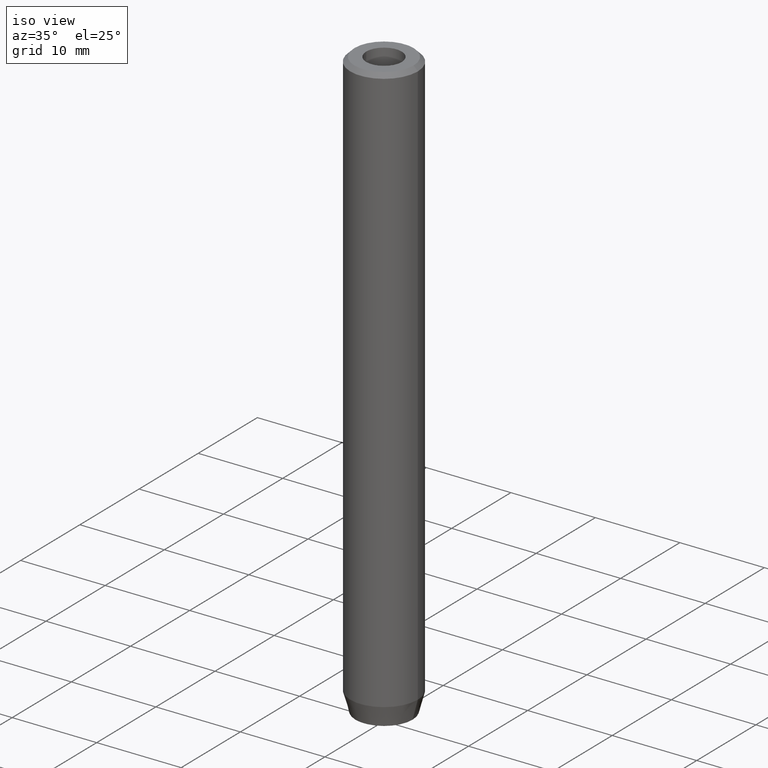
[diagram: clean part render]
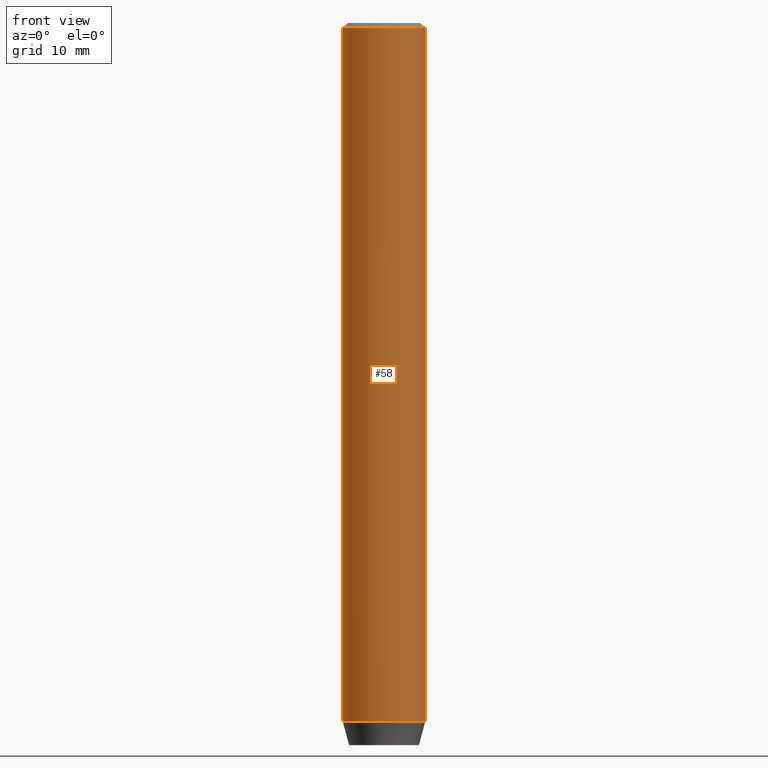
[diagram: tour spotlight — one face highlighted and labeled with its STEP entity id]
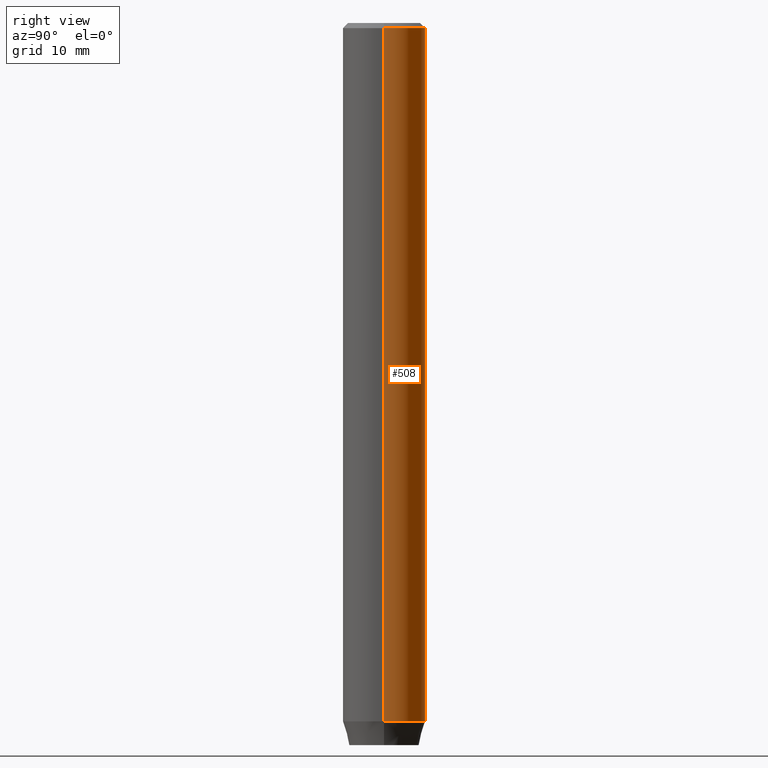
[diagram: tour spotlight — one face highlighted and labeled with its STEP entity id]
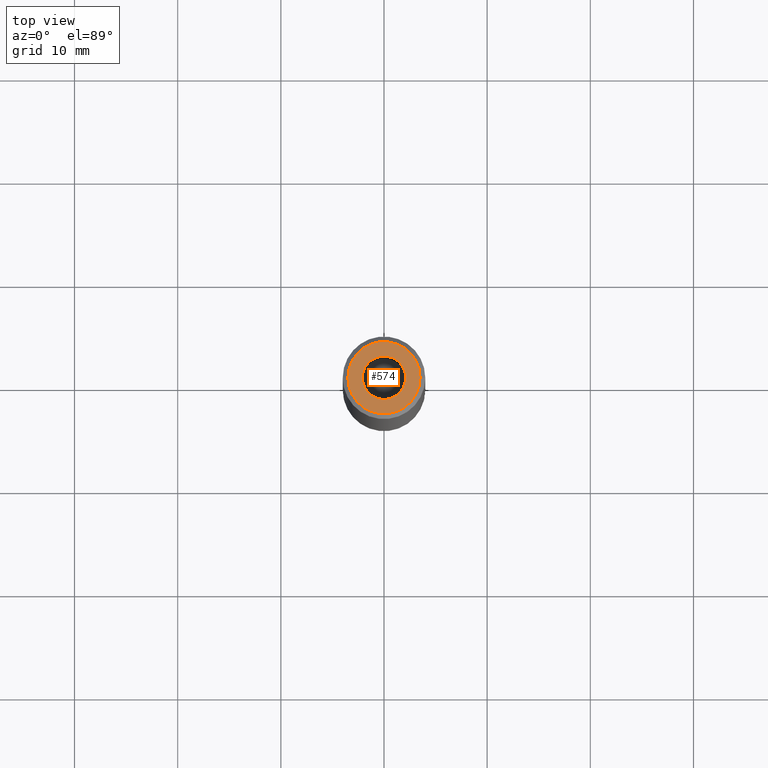
[diagram: tour spotlight — one face highlighted and labeled with its STEP entity id]
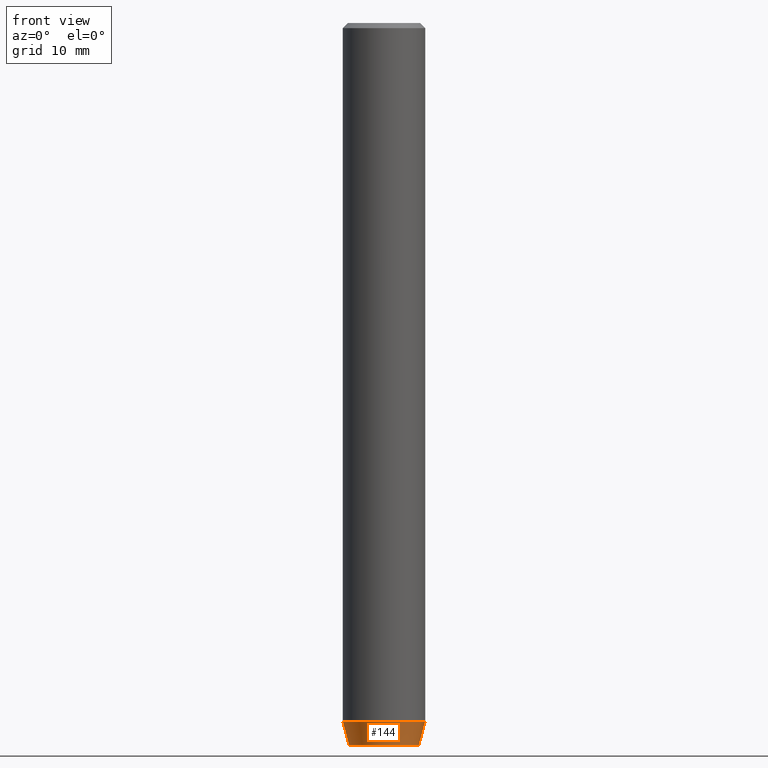
[diagram: tour spotlight — one face highlighted and labeled with its STEP entity id]
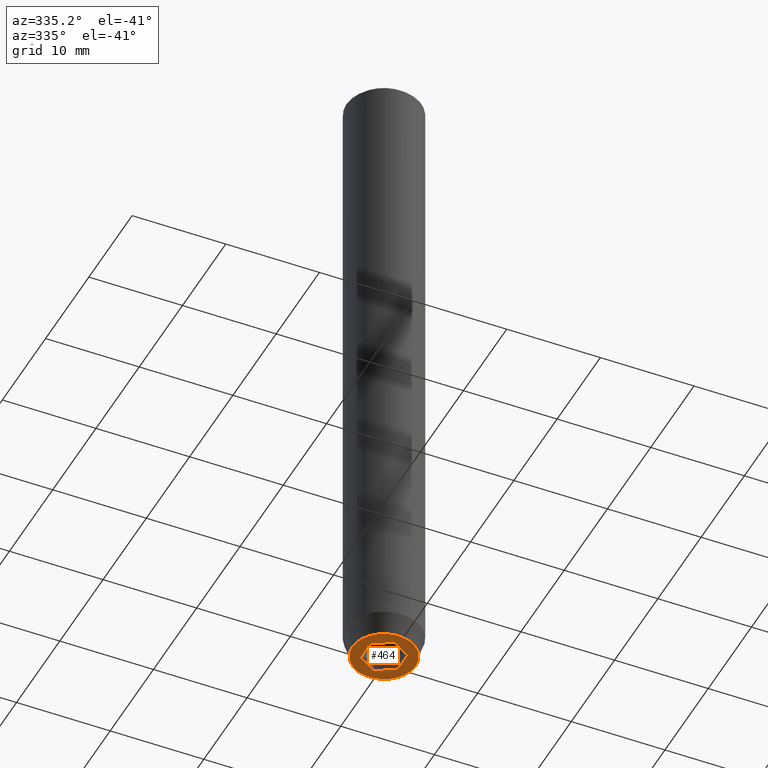
[diagram: tour spotlight — one face highlighted and labeled with its STEP entity id]
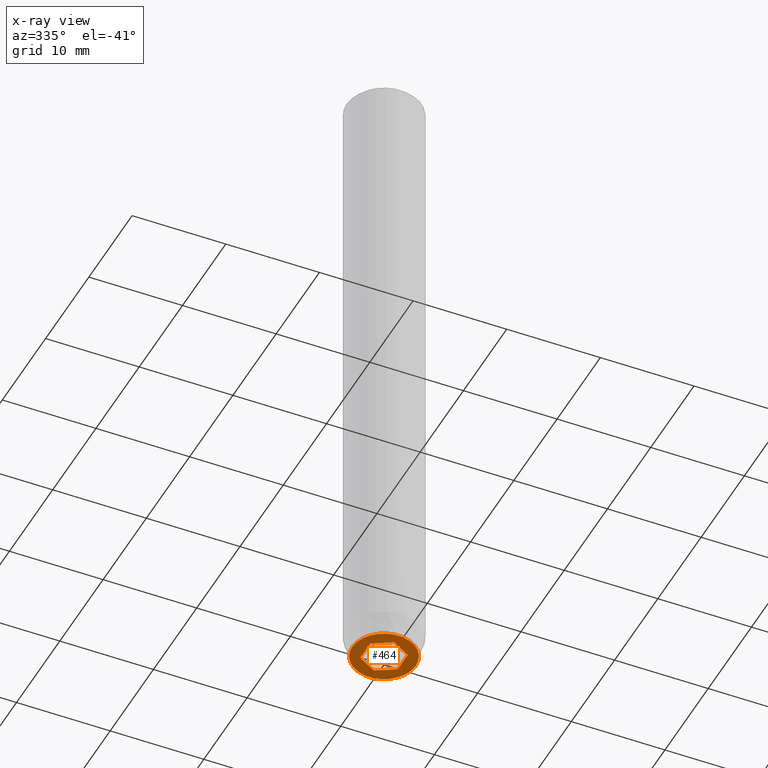
[diagram: x-ray of the same camera — body ghosted, this tour face saturated]
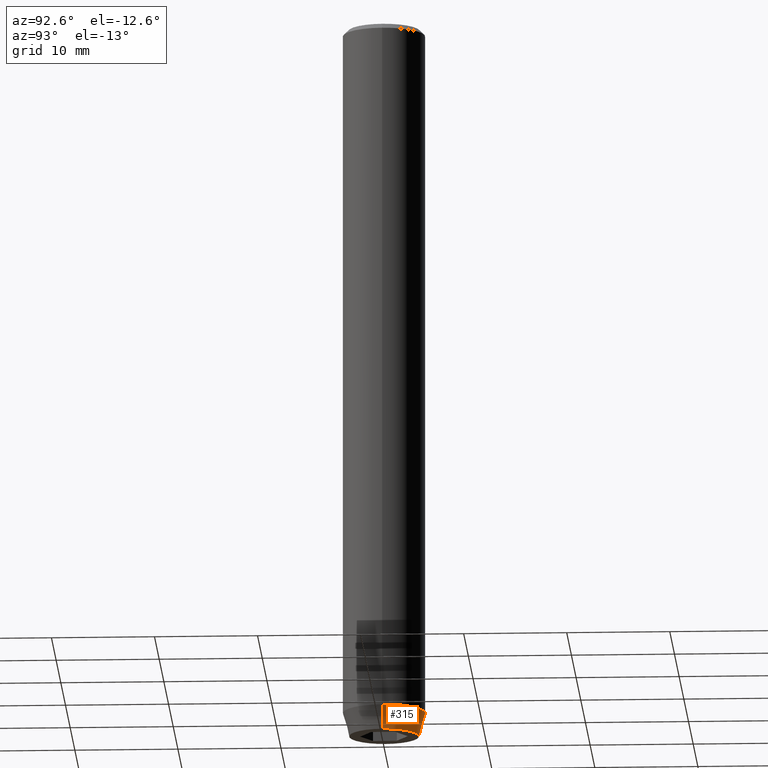
[diagram: tour spotlight — one face highlighted and labeled with its STEP entity id]
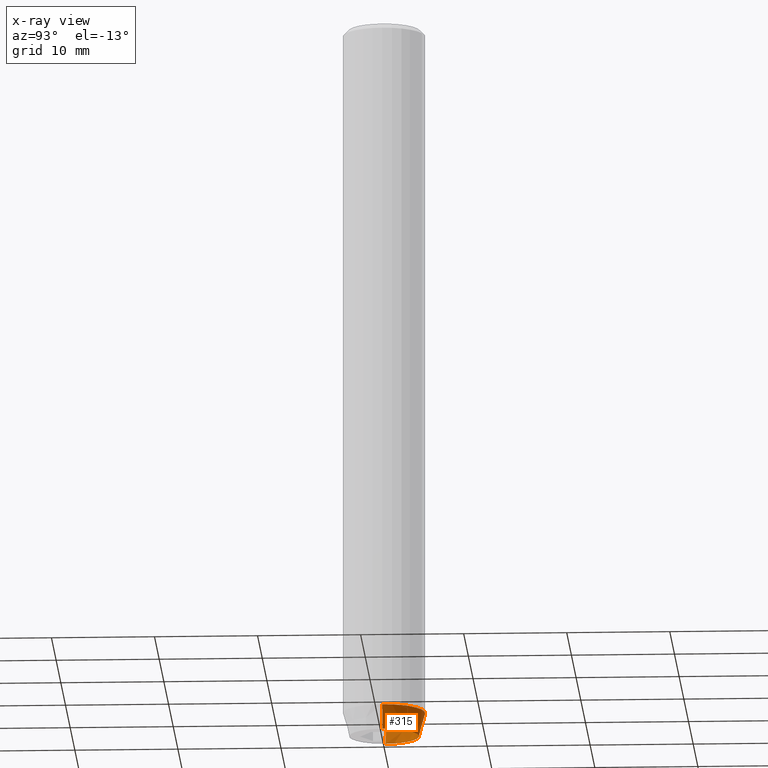
[diagram: x-ray of the same camera — body ghosted, this tour face saturated]
A machine part: a face-by-face anatomy tour. The part has 19 B-rep faces; the first image is the clean iso view, then the 6 largest visible faces are spotlighted one at a time (largest first), each with its STEP entity span.

Face 1 — front view, entity #58. In plain terms, the highlighted cylindrical surface (partial cylindrical patch) has radius 4 mm, axis along (-0, -0, 1).
Definition (entity closure, byte-faithful):
#16 = DIRECTION ( 'NONE',  ( -0.000000000000000000, -0.000000000000000000, 1.000000000000000000 ) ) ;
#20 = DIRECTION ( 'NONE',  ( 1.000000000000000000, 0.000000000000000000, 0.000000000000000000 ) ) ;
#21 = EDGE_CURVE ( 'NONE', #276, #444, #169, .T. ) ;
#48 = DIRECTION ( 'NONE',  ( 1.000000000000000000, 0.000000000000000000, 0.000000000000000000 ) ) ;
#54 = LINE ( 'NONE', #556, #362 ) ;
#58 = ADVANCED_FACE ( 'NONE', ( #424 ), #136, .T. ) ;
#67 = CARTESIAN_POINT ( 'NONE',  ( 0.000000000000000000, 0.000000000000000000, -67.70000000000001705 ) ) ;
#88 = LINE ( 'NONE', #183, #141 ) ;
#123 = EDGE_CURVE ( 'NONE', #350, #426, #333, .T. ) ;
#136 = CYLINDRICAL_SURFACE ( 'NONE', #569, 4.000000000000000000 ) ;
#141 = VECTOR ( 'NONE', #364, 1000.000000000000000 ) ;
#169 = CIRCLE ( 'NONE', #377, 4.000000000000000000 ) ;
#182 = ORIENTED_EDGE ( 'NONE', *, *, #543, .F. ) ;
#183 = CARTESIAN_POINT ( 'NONE',  ( 4.000000000000000000, 0.000000000000000000, 0.000000000000000000 ) ) ;
#207 = ORIENTED_EDGE ( 'NONE', *, *, #21, .T. ) ;
#215 = EDGE_CURVE ( 'NONE', #444, #350, #88, .T. ) ;
#254 = DIRECTION ( 'NONE',  ( 0.000000000000000000, 0.000000000000000000, -1.000000000000000000 ) ) ;
#276 = VERTEX_POINT ( 'NONE', #547 ) ;
#278 = CARTESIAN_POINT ( 'NONE',  ( 0.000000000000000000, 0.000000000000000000, 0.000000000000000000 ) ) ;
#290 = CARTESIAN_POINT ( 'NONE',  ( -4.000000000000000000, 4.898587196589412829E-16, -0.5000000000000108802 ) ) ;
#293 = CARTESIAN_POINT ( 'NONE',  ( 4.000000000000000000, 0.000000000000000000, -67.70000000000001705 ) ) ;
#333 = CIRCLE ( 'NONE', #409, 4.000000000000000000 ) ;
#350 = VERTEX_POINT ( 'NONE', #407 ) ;
#357 = ORIENTED_EDGE ( 'NONE', *, *, #215, .T. ) ;
#362 = VECTOR ( 'NONE', #16, 1000.000000000000000 ) ;
#364 = DIRECTION ( 'NONE',  ( -0.000000000000000000, -0.000000000000000000, 1.000000000000000000 ) ) ;
#377 = AXIS2_PLACEMENT_3D ( 'NONE', #67, #392, #20 ) ;
#392 = DIRECTION ( 'NONE',  ( -0.000000000000000000, -0.000000000000000000, 1.000000000000000000 ) ) ;
#394 = DIRECTION ( 'NONE',  ( 1.000000000000000000, 0.000000000000000000, 0.000000000000000000 ) ) ;
#407 = CARTESIAN_POINT ( 'NONE',  ( 4.000000000000000000, 0.000000000000000000, -0.5000000000000108802 ) ) ;
#409 = AXIS2_PLACEMENT_3D ( 'NONE', #438, #254, #394 ) ;
#424 = FACE_OUTER_BOUND ( 'NONE', #576, .T. ) ;
#426 = VERTEX_POINT ( 'NONE', #290 ) ;
#438 = CARTESIAN_POINT ( 'NONE',  ( 0.000000000000000000, 0.000000000000000000, -0.5000000000000108802 ) ) ;
#444 = VERTEX_POINT ( 'NONE', #293 ) ;
#460 = DIRECTION ( 'NONE',  ( -0.000000000000000000, -0.000000000000000000, 1.000000000000000000 ) ) ;
#535 = ORIENTED_EDGE ( 'NONE', *, *, #123, .T. ) ;
#543 = EDGE_CURVE ( 'NONE', #276, #426, #54, .T. ) ;
#547 = CARTESIAN_POINT ( 'NONE',  ( -4.000000000000000000, 4.898587196589412829E-16, -67.70000000000001705 ) ) ;
#556 = CARTESIAN_POINT ( 'NONE',  ( -4.000000000000000000, 4.898587196589412829E-16, 0.000000000000000000 ) ) ;
#569 = AXIS2_PLACEMENT_3D ( 'NONE', #278, #460, #48 ) ;
#576 = EDGE_LOOP ( 'NONE', ( #182, #207, #357, #535 ) ) ;

Face 2 — right view, entity #508. In plain terms, the highlighted cylindrical surface (partial cylindrical patch) has radius 4 mm, axis along (-0, -0, 1).
Definition (entity closure, byte-faithful):
#16 = DIRECTION ( 'NONE',  ( -0.000000000000000000, -0.000000000000000000, 1.000000000000000000 ) ) ;
#29 = ORIENTED_EDGE ( 'NONE', *, *, #385, .T. ) ;
#54 = LINE ( 'NONE', #556, #362 ) ;
#80 = CIRCLE ( 'NONE', #440, 4.000000000000000000 ) ;
#88 = LINE ( 'NONE', #183, #141 ) ;
#100 = AXIS2_PLACEMENT_3D ( 'NONE', #473, #372, #560 ) ;
#114 = ORIENTED_EDGE ( 'NONE', *, *, #543, .T. ) ;
#140 = CARTESIAN_POINT ( 'NONE',  ( 0.000000000000000000, 0.000000000000000000, -0.5000000000000108802 ) ) ;
#141 = VECTOR ( 'NONE', #364, 1000.000000000000000 ) ;
#143 = ORIENTED_EDGE ( 'NONE', *, *, #567, .T. ) ;
#173 = EDGE_LOOP ( 'NONE', ( #143, #114, #29, #328 ) ) ;
#183 = CARTESIAN_POINT ( 'NONE',  ( 4.000000000000000000, 0.000000000000000000, 0.000000000000000000 ) ) ;
#206 = CARTESIAN_POINT ( 'NONE',  ( 0.000000000000000000, 0.000000000000000000, -67.70000000000001705 ) ) ;
#215 = EDGE_CURVE ( 'NONE', #444, #350, #88, .T. ) ;
#250 = DIRECTION ( 'NONE',  ( 1.000000000000000000, 0.000000000000000000, 0.000000000000000000 ) ) ;
#276 = VERTEX_POINT ( 'NONE', #547 ) ;
#290 = CARTESIAN_POINT ( 'NONE',  ( -4.000000000000000000, 4.898587196589412829E-16, -0.5000000000000108802 ) ) ;
#293 = CARTESIAN_POINT ( 'NONE',  ( 4.000000000000000000, 0.000000000000000000, -67.70000000000001705 ) ) ;
#328 = ORIENTED_EDGE ( 'NONE', *, *, #215, .F. ) ;
#350 = VERTEX_POINT ( 'NONE', #407 ) ;
#362 = VECTOR ( 'NONE', #16, 1000.000000000000000 ) ;
#364 = DIRECTION ( 'NONE',  ( -0.000000000000000000, -0.000000000000000000, 1.000000000000000000 ) ) ;
#372 = DIRECTION ( 'NONE',  ( -0.000000000000000000, -0.000000000000000000, 1.000000000000000000 ) ) ;
#380 = AXIS2_PLACEMENT_3D ( 'NONE', #140, #502, #461 ) ;
#385 = EDGE_CURVE ( 'NONE', #426, #350, #421, .T. ) ;
#407 = CARTESIAN_POINT ( 'NONE',  ( 4.000000000000000000, 0.000000000000000000, -0.5000000000000108802 ) ) ;
#421 = CIRCLE ( 'NONE', #380, 4.000000000000000000 ) ;
#426 = VERTEX_POINT ( 'NONE', #290 ) ;
#440 = AXIS2_PLACEMENT_3D ( 'NONE', #206, #481, #250 ) ;
#444 = VERTEX_POINT ( 'NONE', #293 ) ;
#461 = DIRECTION ( 'NONE',  ( 1.000000000000000000, 0.000000000000000000, 0.000000000000000000 ) ) ;
#473 = CARTESIAN_POINT ( 'NONE',  ( 0.000000000000000000, 0.000000000000000000, 0.000000000000000000 ) ) ;
#481 = DIRECTION ( 'NONE',  ( -0.000000000000000000, -0.000000000000000000, 1.000000000000000000 ) ) ;
#502 = DIRECTION ( 'NONE',  ( 0.000000000000000000, 0.000000000000000000, -1.000000000000000000 ) ) ;
#508 = ADVANCED_FACE ( 'NONE', ( #510 ), #565, .T. ) ;
#510 = FACE_OUTER_BOUND ( 'NONE', #173, .T. ) ;
#543 = EDGE_CURVE ( 'NONE', #276, #426, #54, .T. ) ;
#547 = CARTESIAN_POINT ( 'NONE',  ( -4.000000000000000000, 4.898587196589412829E-16, -67.70000000000001705 ) ) ;
#556 = CARTESIAN_POINT ( 'NONE',  ( -4.000000000000000000, 4.898587196589412829E-16, 0.000000000000000000 ) ) ;
#560 = DIRECTION ( 'NONE',  ( 1.000000000000000000, 0.000000000000000000, 0.000000000000000000 ) ) ;
#565 = CYLINDRICAL_SURFACE ( 'NONE', #100, 4.000000000000000000 ) ;
#567 = EDGE_CURVE ( 'NONE', #444, #276, #80, .T. ) ;

Face 3 — top view, entity #574. In plain terms, the highlighted planar face has unit normal (0, -0, 1).
Definition (entity closure, byte-faithful):
#19 = DIRECTION ( 'NONE',  ( 1.000000000000000000, 0.000000000000000000, 0.000000000000000000 ) ) ;
#22 = ORIENTED_EDGE ( 'NONE', *, *, #124, .F. ) ;
#63 = DIRECTION ( 'NONE',  ( -0.000000000000000000, -0.000000000000000000, 1.000000000000000000 ) ) ;
#65 = AXIS2_PLACEMENT_3D ( 'NONE', #195, #63, #19 ) ;
#86 = ORIENTED_EDGE ( 'NONE', *, *, #106, .T. ) ;
#92 = CARTESIAN_POINT ( 'NONE',  ( -2.099999999999998757, 2.571758278209439985E-16, -1.990051048614449116E-16 ) ) ;
#106 = EDGE_CURVE ( 'NONE', #271, #494, #513, .T. ) ;
#118 = CARTESIAN_POINT ( 'NONE',  ( 0.000000000000000000, 0.000000000000000000, 0.000000000000000000 ) ) ;
#122 = VERTEX_POINT ( 'NONE', #403 ) ;
#124 = EDGE_CURVE ( 'NONE', #122, #216, #298, .T. ) ;
#128 = EDGE_LOOP ( 'NONE', ( #354, #86 ) ) ;
#132 = DIRECTION ( 'NONE',  ( -0.000000000000000000, -0.000000000000000000, 1.000000000000000000 ) ) ;
#152 = DIRECTION ( 'NONE',  ( 1.000000000000000000, 0.000000000000000000, 0.000000000000000000 ) ) ;
#171 = AXIS2_PLACEMENT_3D ( 'NONE', #220, #496, #585 ) ;
#195 = CARTESIAN_POINT ( 'NONE',  ( 0.000000000000000000, 0.000000000000000000, 0.000000000000000000 ) ) ;
#216 = VERTEX_POINT ( 'NONE', #92 ) ;
#217 = CIRCLE ( 'NONE', #253, 2.099999999999998757 ) ;
#220 = CARTESIAN_POINT ( 'NONE',  ( 0.000000000000000000, 0.000000000000000000, -1.990051048614449116E-16 ) ) ;
#242 = CARTESIAN_POINT ( 'NONE',  ( -3.499999999999989342, 0.000000000000000000, 0.000000000000000000 ) ) ;
#253 = AXIS2_PLACEMENT_3D ( 'NONE', #359, #132, #538 ) ;
#260 = ORIENTED_EDGE ( 'NONE', *, *, #375, .F. ) ;
#271 = VERTEX_POINT ( 'NONE', #282 ) ;
#273 = DIRECTION ( 'NONE',  ( 1.000000000000000000, 0.000000000000000000, 0.000000000000000000 ) ) ;
#282 = CARTESIAN_POINT ( 'NONE',  ( 3.499999999999989342, 4.592425496802568056E-16, 0.000000000000000000 ) ) ;
#298 = CIRCLE ( 'NONE', #171, 2.099999999999998757 ) ;
#307 = AXIS2_PLACEMENT_3D ( 'NONE', #118, #501, #273 ) ;
#344 = AXIS2_PLACEMENT_3D ( 'NONE', #387, #525, #152 ) ;
#354 = ORIENTED_EDGE ( 'NONE', *, *, #507, .T. ) ;
#359 = CARTESIAN_POINT ( 'NONE',  ( 0.000000000000000000, 0.000000000000000000, -1.990051048614449116E-16 ) ) ;
#375 = EDGE_CURVE ( 'NONE', #216, #122, #217, .T. ) ;
#387 = CARTESIAN_POINT ( 'NONE',  ( 0.000000000000000000, 0.000000000000000000, 0.000000000000000000 ) ) ;
#401 = EDGE_LOOP ( 'NONE', ( #22, #260 ) ) ;
#403 = CARTESIAN_POINT ( 'NONE',  ( 2.099999999999998757, 0.000000000000000000, -1.990051048614449116E-16 ) ) ;
#433 = CIRCLE ( 'NONE', #65, 3.499999999999989342 ) ;
#494 = VERTEX_POINT ( 'NONE', #242 ) ;
#496 = DIRECTION ( 'NONE',  ( -0.000000000000000000, -0.000000000000000000, 1.000000000000000000 ) ) ;
#501 = DIRECTION ( 'NONE',  ( 0.000000000000000000, -0.000000000000000000, 1.000000000000000000 ) ) ;
#507 = EDGE_CURVE ( 'NONE', #494, #271, #433, .T. ) ;
#513 = CIRCLE ( 'NONE', #344, 3.499999999999989342 ) ;
#525 = DIRECTION ( 'NONE',  ( -0.000000000000000000, -0.000000000000000000, 1.000000000000000000 ) ) ;
#529 = FACE_BOUND ( 'NONE', #401, .T. ) ;
#538 = DIRECTION ( 'NONE',  ( 1.000000000000000000, 0.000000000000000000, 0.000000000000000000 ) ) ;
#571 = PLANE ( 'NONE',  #307 ) ;
#574 = ADVANCED_FACE ( 'NONE', ( #529, #575 ), #571, .T. ) ;
#575 = FACE_OUTER_BOUND ( 'NONE', #128, .T. ) ;
#585 = DIRECTION ( 'NONE',  ( 1.000000000000000000, 0.000000000000000000, 0.000000000000000000 ) ) ;

Face 4 — front view, entity #144. In plain terms, the highlighted conical surface has half-angle 15 deg.
Definition (entity closure, byte-faithful):
#20 = DIRECTION ( 'NONE',  ( 1.000000000000000000, 0.000000000000000000, 0.000000000000000000 ) ) ;
#21 = EDGE_CURVE ( 'NONE', #276, #444, #169, .T. ) ;
#28 = DIRECTION ( 'NONE',  ( -0.000000000000000000, -0.000000000000000000, 1.000000000000000000 ) ) ;
#41 = CARTESIAN_POINT ( 'NONE',  ( -4.000000000000000000, 4.898587196589412829E-16, -67.70000000000001705 ) ) ;
#67 = CARTESIAN_POINT ( 'NONE',  ( 0.000000000000000000, 0.000000000000000000, -67.70000000000001705 ) ) ;
#74 = VERTEX_POINT ( 'NONE', #288 ) ;
#89 = DIRECTION ( 'NONE',  ( -0.000000000000000000, -0.000000000000000000, 1.000000000000000000 ) ) ;
#144 = ADVANCED_FACE ( 'NONE', ( #540 ), #487, .T. ) ;
#165 = DIRECTION ( 'NONE',  ( -0.2588190451025210725, 3.169619151431769255E-17, 0.9659258262890680902 ) ) ;
#169 = CIRCLE ( 'NONE', #377, 4.000000000000000000 ) ;
#185 = CARTESIAN_POINT ( 'NONE',  ( 4.000000000000000000, 0.000000000000000000, -67.70000000000001705 ) ) ;
#204 = CARTESIAN_POINT ( 'NONE',  ( 3.383716857408417766, 0.000000000000000000, -70.00000000000000000 ) ) ;
#209 = EDGE_CURVE ( 'NONE', #74, #276, #573, .T. ) ;
#211 = VECTOR ( 'NONE', #214, 1000.000000000000114 ) ;
#214 = DIRECTION ( 'NONE',  ( 0.2588190451025210725, 0.000000000000000000, 0.9659258262890680902 ) ) ;
#234 = EDGE_CURVE ( 'NONE', #546, #444, #318, .T. ) ;
#245 = VECTOR ( 'NONE', #165, 1000.000000000000114 ) ;
#276 = VERTEX_POINT ( 'NONE', #547 ) ;
#288 = CARTESIAN_POINT ( 'NONE',  ( -3.383716857408417766, 4.521222607617785469E-16, -70.00000000000000000 ) ) ;
#293 = CARTESIAN_POINT ( 'NONE',  ( 4.000000000000000000, 0.000000000000000000, -67.70000000000001705 ) ) ;
#308 = EDGE_LOOP ( 'NONE', ( #320, #381, #310, #493 ) ) ;
#310 = ORIENTED_EDGE ( 'NONE', *, *, #234, .T. ) ;
#313 = DIRECTION ( 'NONE',  ( 1.000000000000000000, 0.000000000000000000, 0.000000000000000000 ) ) ;
#318 = LINE ( 'NONE', #185, #211 ) ;
#320 = ORIENTED_EDGE ( 'NONE', *, *, #209, .F. ) ;
#345 = AXIS2_PLACEMENT_3D ( 'NONE', #583, #89, #363 ) ;
#358 = EDGE_CURVE ( 'NONE', #74, #546, #393, .T. ) ;
#363 = DIRECTION ( 'NONE',  ( 1.000000000000000000, 0.000000000000000000, 0.000000000000000000 ) ) ;
#377 = AXIS2_PLACEMENT_3D ( 'NONE', #67, #392, #20 ) ;
#381 = ORIENTED_EDGE ( 'NONE', *, *, #358, .T. ) ;
#392 = DIRECTION ( 'NONE',  ( -0.000000000000000000, -0.000000000000000000, 1.000000000000000000 ) ) ;
#393 = CIRCLE ( 'NONE', #345, 3.383716857408417766 ) ;
#411 = AXIS2_PLACEMENT_3D ( 'NONE', #458, #28, #313 ) ;
#444 = VERTEX_POINT ( 'NONE', #293 ) ;
#458 = CARTESIAN_POINT ( 'NONE',  ( 0.000000000000000000, 0.000000000000000000, -67.70000000000001705 ) ) ;
#487 = CONICAL_SURFACE ( 'NONE', #411, 4.000000000000000000, 0.2617993877991497964 ) ;
#493 = ORIENTED_EDGE ( 'NONE', *, *, #21, .F. ) ;
#540 = FACE_OUTER_BOUND ( 'NONE', #308, .T. ) ;
#546 = VERTEX_POINT ( 'NONE', #204 ) ;
#547 = CARTESIAN_POINT ( 'NONE',  ( -4.000000000000000000, 4.898587196589412829E-16, -67.70000000000001705 ) ) ;
#573 = LINE ( 'NONE', #41, #245 ) ;
#583 = CARTESIAN_POINT ( 'NONE',  ( 0.000000000000000000, 0.000000000000000000, -70.00000000000000000 ) ) ;

Face 5 — auxiliary view, entity #464. An x-ray twin of the same camera follows (body ghosted, this face saturated) — the face is partly hidden behind the body. In plain terms, the highlighted planar face has unit normal (0, 0, -1).
Definition (entity closure, byte-faithful):
#9 = VERTEX_POINT ( 'NONE', #341 ) ;
#23 = VERTEX_POINT ( 'NONE', #251 ) ;
#31 = ORIENTED_EDGE ( 'NONE', *, *, #40, .F. ) ;
#40 = EDGE_CURVE ( 'NONE', #133, #9, #70, .T. ) ;
#45 = CARTESIAN_POINT ( 'NONE',  ( -1.999999999999998224, 1.126735949052866956E-15, -70.00000000000000000 ) ) ;
#46 = EDGE_LOOP ( 'NONE', ( #59, #517 ) ) ;
#57 = LINE ( 'NONE', #159, #553 ) ;
#59 = ORIENTED_EDGE ( 'NONE', *, *, #281, .F. ) ;
#70 = LINE ( 'NONE', #113, #454 ) ;
#71 = DIRECTION ( 'NONE',  ( -0.8660254037844387076, 0.5000000000000001110, 0.000000000000000000 ) ) ;
#74 = VERTEX_POINT ( 'NONE', #288 ) ;
#81 = LINE ( 'NONE', #264, #91 ) ;
#89 = DIRECTION ( 'NONE',  ( -0.000000000000000000, -0.000000000000000000, 1.000000000000000000 ) ) ;
#90 = VECTOR ( 'NONE', #500, 1000.000000000000000 ) ;
#91 = VECTOR ( 'NONE', #130, 1000.000000000000114 ) ;
#109 = DIRECTION ( 'NONE',  ( -1.000000000000000000, 0.000000000000000000, -0.000000000000000000 ) ) ;
#113 = CARTESIAN_POINT ( 'NONE',  ( 1.000000000000000444, 1.732050807568877637, -70.00000000000000000 ) ) ;
#130 = DIRECTION ( 'NONE',  ( -0.8660254037844388186, -0.4999999999999996114, 0.000000000000000000 ) ) ;
#133 = VERTEX_POINT ( 'NONE', #414 ) ;
#149 = CARTESIAN_POINT ( 'NONE',  ( 0.000000000000000000, 3.383716857408417766, -70.00000000000000000 ) ) ;
#159 = CARTESIAN_POINT ( 'NONE',  ( 2.000000000000000888, 0.000000000000000000, -70.00000000000000000 ) ) ;
#160 = DIRECTION ( 'NONE',  ( 0.8660254037844385966, -0.5000000000000001110, 0.000000000000000000 ) ) ;
#161 = VECTOR ( 'NONE', #71, 999.9999999999998863 ) ;
#192 = VECTOR ( 'NONE', #386, 1000.000000000000000 ) ;
#193 = EDGE_CURVE ( 'NONE', #23, #580, #450, .T. ) ;
#197 = CARTESIAN_POINT ( 'NONE',  ( -1.000000000000000444, 1.732050807568877637, -70.00000000000000000 ) ) ;
#204 = CARTESIAN_POINT ( 'NONE',  ( 3.383716857408417766, 0.000000000000000000, -70.00000000000000000 ) ) ;
#205 = ORIENTED_EDGE ( 'NONE', *, *, #193, .F. ) ;
#219 = VERTEX_POINT ( 'NONE', #528 ) ;
#227 = CARTESIAN_POINT ( 'NONE',  ( -1.000000000000000222, -1.732050807568877637, -70.00000000000000000 ) ) ;
#237 = PLANE ( 'NONE',  #533 ) ;
#248 = CARTESIAN_POINT ( 'NONE',  ( 2.168404344971008868E-16, -2.309401076758503812, -70.00000000000000000 ) ) ;
#251 = CARTESIAN_POINT ( 'NONE',  ( -1.999999999999998668, -1.154700538379252572, -70.00000000000000000 ) ) ;
#255 = EDGE_CURVE ( 'NONE', #480, #23, #275, .T. ) ;
#264 = CARTESIAN_POINT ( 'NONE',  ( 0.9999999999999997780, -1.732050807568878747, -70.00000000000000000 ) ) ;
#265 = EDGE_LOOP ( 'NONE', ( #562, #205, #397, #323, #272, #31 ) ) ;
#272 = ORIENTED_EDGE ( 'NONE', *, *, #423, .F. ) ;
#275 = LINE ( 'NONE', #227, #161 ) ;
#281 = EDGE_CURVE ( 'NONE', #546, #74, #447, .T. ) ;
#287 = AXIS2_PLACEMENT_3D ( 'NONE', #419, #324, #404 ) ;
#288 = CARTESIAN_POINT ( 'NONE',  ( -3.383716857408417766, 4.521222607617785469E-16, -70.00000000000000000 ) ) ;
#323 = ORIENTED_EDGE ( 'NONE', *, *, #402, .F. ) ;
#324 = DIRECTION ( 'NONE',  ( -0.000000000000000000, -0.000000000000000000, 1.000000000000000000 ) ) ;
#332 = LINE ( 'NONE', #197, #192 ) ;
#340 = DIRECTION ( 'NONE',  ( 0.000000000000000000, -1.000000000000000000, 0.000000000000000000 ) ) ;
#341 = CARTESIAN_POINT ( 'NONE',  ( 2.000000000000000888, 1.154700538379251462, -70.00000000000000000 ) ) ;
#345 = AXIS2_PLACEMENT_3D ( 'NONE', #583, #89, #363 ) ;
#358 = EDGE_CURVE ( 'NONE', #74, #546, #393, .T. ) ;
#363 = DIRECTION ( 'NONE',  ( 1.000000000000000000, 0.000000000000000000, 0.000000000000000000 ) ) ;
#378 = FACE_BOUND ( 'NONE', #265, .T. ) ;
#386 = DIRECTION ( 'NONE',  ( 0.8660254037844385966, 0.5000000000000001110, 0.000000000000000000 ) ) ;
#393 = CIRCLE ( 'NONE', #345, 3.383716857408417766 ) ;
#397 = ORIENTED_EDGE ( 'NONE', *, *, #255, .F. ) ;
#402 = EDGE_CURVE ( 'NONE', #219, #480, #81, .T. ) ;
#404 = DIRECTION ( 'NONE',  ( 1.000000000000000000, 0.000000000000000000, 0.000000000000000000 ) ) ;
#414 = CARTESIAN_POINT ( 'NONE',  ( 0.000000000000000000, 2.309401076758503812, -70.00000000000000000 ) ) ;
#419 = CARTESIAN_POINT ( 'NONE',  ( 0.000000000000000000, 0.000000000000000000, -70.00000000000000000 ) ) ;
#423 = EDGE_CURVE ( 'NONE', #9, #219, #57, .T. ) ;
#425 = FACE_OUTER_BOUND ( 'NONE', #46, .T. ) ;
#447 = CIRCLE ( 'NONE', #287, 3.383716857408417766 ) ;
#450 = LINE ( 'NONE', #45, #90 ) ;
#454 = VECTOR ( 'NONE', #160, 1000.000000000000000 ) ;
#464 = ADVANCED_FACE ( 'NONE', ( #378, #425 ), #237, .T. ) ;
#479 = DIRECTION ( 'NONE',  ( 0.000000000000000000, 0.000000000000000000, -1.000000000000000000 ) ) ;
#480 = VERTEX_POINT ( 'NONE', #248 ) ;
#498 = CARTESIAN_POINT ( 'NONE',  ( -1.999999999999997780, 1.154700538379253238, -70.00000000000000000 ) ) ;
#500 = DIRECTION ( 'NONE',  ( 5.633679745264339711E-16, 1.000000000000000000, 0.000000000000000000 ) ) ;
#517 = ORIENTED_EDGE ( 'NONE', *, *, #358, .F. ) ;
#528 = CARTESIAN_POINT ( 'NONE',  ( 2.000000000000000888, -1.154700538379252572, -70.00000000000000000 ) ) ;
#533 = AXIS2_PLACEMENT_3D ( 'NONE', #149, #479, #109 ) ;
#546 = VERTEX_POINT ( 'NONE', #204 ) ;
#551 = EDGE_CURVE ( 'NONE', #580, #133, #332, .T. ) ;
#553 = VECTOR ( 'NONE', #340, 1000.000000000000000 ) ;
#562 = ORIENTED_EDGE ( 'NONE', *, *, #551, .F. ) ;
#580 = VERTEX_POINT ( 'NONE', #498 ) ;
#583 = CARTESIAN_POINT ( 'NONE',  ( 0.000000000000000000, 0.000000000000000000, -70.00000000000000000 ) ) ;

Face 6 — auxiliary view, entity #315. An x-ray twin of the same camera follows (body ghosted, this face saturated) — the face is partly hidden behind the body. In plain terms, the highlighted conical surface has half-angle 15 deg.
Definition (entity closure, byte-faithful):
#34 = ORIENTED_EDGE ( 'NONE', *, *, #234, .F. ) ;
#41 = CARTESIAN_POINT ( 'NONE',  ( -4.000000000000000000, 4.898587196589412829E-16, -67.70000000000001705 ) ) ;
#74 = VERTEX_POINT ( 'NONE', #288 ) ;
#80 = CIRCLE ( 'NONE', #440, 4.000000000000000000 ) ;
#162 = CONICAL_SURFACE ( 'NONE', #181, 4.000000000000000000, 0.2617993877991497964 ) ;
#165 = DIRECTION ( 'NONE',  ( -0.2588190451025210725, 3.169619151431769255E-17, 0.9659258262890680902 ) ) ;
#181 = AXIS2_PLACEMENT_3D ( 'NONE', #456, #499, #184 ) ;
#184 = DIRECTION ( 'NONE',  ( 1.000000000000000000, 0.000000000000000000, 0.000000000000000000 ) ) ;
#185 = CARTESIAN_POINT ( 'NONE',  ( 4.000000000000000000, 0.000000000000000000, -67.70000000000001705 ) ) ;
#204 = CARTESIAN_POINT ( 'NONE',  ( 3.383716857408417766, 0.000000000000000000, -70.00000000000000000 ) ) ;
#206 = CARTESIAN_POINT ( 'NONE',  ( 0.000000000000000000, 0.000000000000000000, -67.70000000000001705 ) ) ;
#209 = EDGE_CURVE ( 'NONE', #74, #276, #573, .T. ) ;
#211 = VECTOR ( 'NONE', #214, 1000.000000000000114 ) ;
#214 = DIRECTION ( 'NONE',  ( 0.2588190451025210725, 0.000000000000000000, 0.9659258262890680902 ) ) ;
#234 = EDGE_CURVE ( 'NONE', #546, #444, #318, .T. ) ;
#235 = ORIENTED_EDGE ( 'NONE', *, *, #281, .T. ) ;
#245 = VECTOR ( 'NONE', #165, 1000.000000000000114 ) ;
#250 = DIRECTION ( 'NONE',  ( 1.000000000000000000, 0.000000000000000000, 0.000000000000000000 ) ) ;
#276 = VERTEX_POINT ( 'NONE', #547 ) ;
#281 = EDGE_CURVE ( 'NONE', #546, #74, #447, .T. ) ;
#287 = AXIS2_PLACEMENT_3D ( 'NONE', #419, #324, #404 ) ;
#288 = CARTESIAN_POINT ( 'NONE',  ( -3.383716857408417766, 4.521222607617785469E-16, -70.00000000000000000 ) ) ;
#293 = CARTESIAN_POINT ( 'NONE',  ( 4.000000000000000000, 0.000000000000000000, -67.70000000000001705 ) ) ;
#300 = EDGE_LOOP ( 'NONE', ( #235, #489, #412, #34 ) ) ;
#315 = ADVANCED_FACE ( 'NONE', ( #586 ), #162, .T. ) ;
#318 = LINE ( 'NONE', #185, #211 ) ;
#324 = DIRECTION ( 'NONE',  ( -0.000000000000000000, -0.000000000000000000, 1.000000000000000000 ) ) ;
#404 = DIRECTION ( 'NONE',  ( 1.000000000000000000, 0.000000000000000000, 0.000000000000000000 ) ) ;
#412 = ORIENTED_EDGE ( 'NONE', *, *, #567, .F. ) ;
#419 = CARTESIAN_POINT ( 'NONE',  ( 0.000000000000000000, 0.000000000000000000, -70.00000000000000000 ) ) ;
#440 = AXIS2_PLACEMENT_3D ( 'NONE', #206, #481, #250 ) ;
#444 = VERTEX_POINT ( 'NONE', #293 ) ;
#447 = CIRCLE ( 'NONE', #287, 3.383716857408417766 ) ;
#456 = CARTESIAN_POINT ( 'NONE',  ( 0.000000000000000000, 0.000000000000000000, -67.70000000000001705 ) ) ;
#481 = DIRECTION ( 'NONE',  ( -0.000000000000000000, -0.000000000000000000, 1.000000000000000000 ) ) ;
#489 = ORIENTED_EDGE ( 'NONE', *, *, #209, .T. ) ;
#499 = DIRECTION ( 'NONE',  ( -0.000000000000000000, -0.000000000000000000, 1.000000000000000000 ) ) ;
#546 = VERTEX_POINT ( 'NONE', #204 ) ;
#547 = CARTESIAN_POINT ( 'NONE',  ( -4.000000000000000000, 4.898587196589412829E-16, -67.70000000000001705 ) ) ;
#567 = EDGE_CURVE ( 'NONE', #444, #276, #80, .T. ) ;
#573 = LINE ( 'NONE', #41, #245 ) ;
#586 = FACE_OUTER_BOUND ( 'NONE', #300, .T. ) ;